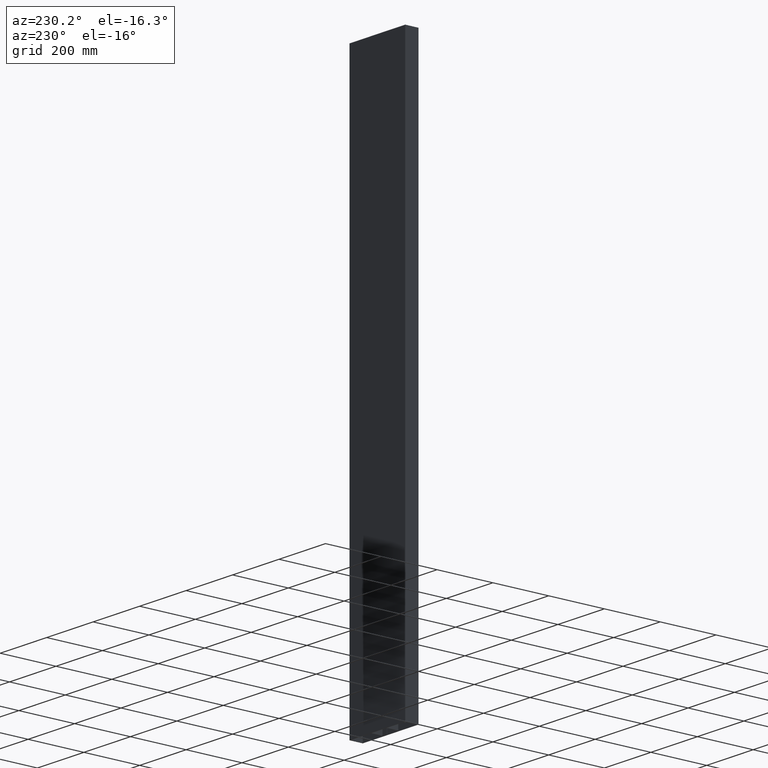
[diagram: clean part render]
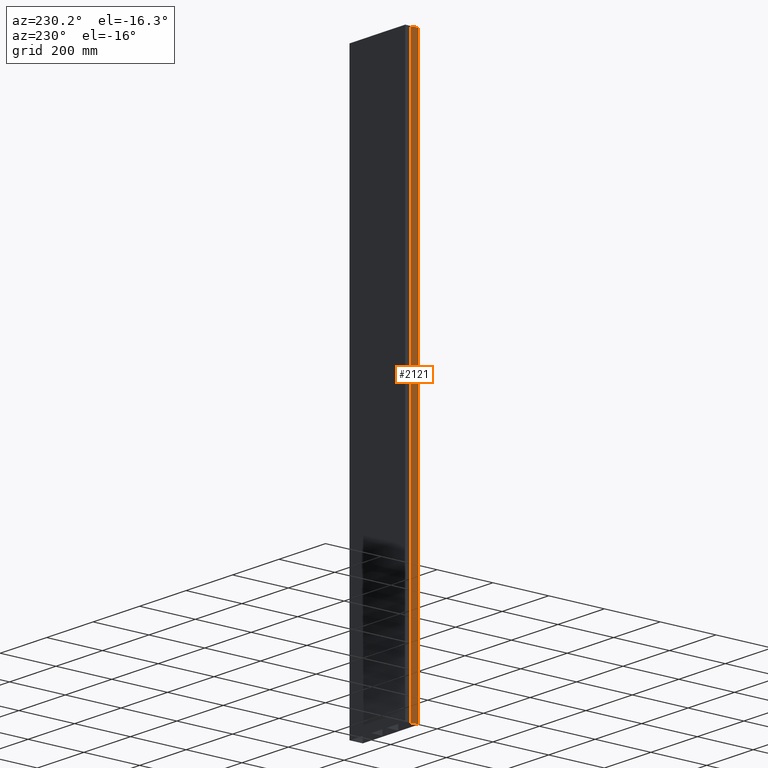
[diagram: same view with one face highlighted and labeled with its STEP entity id]
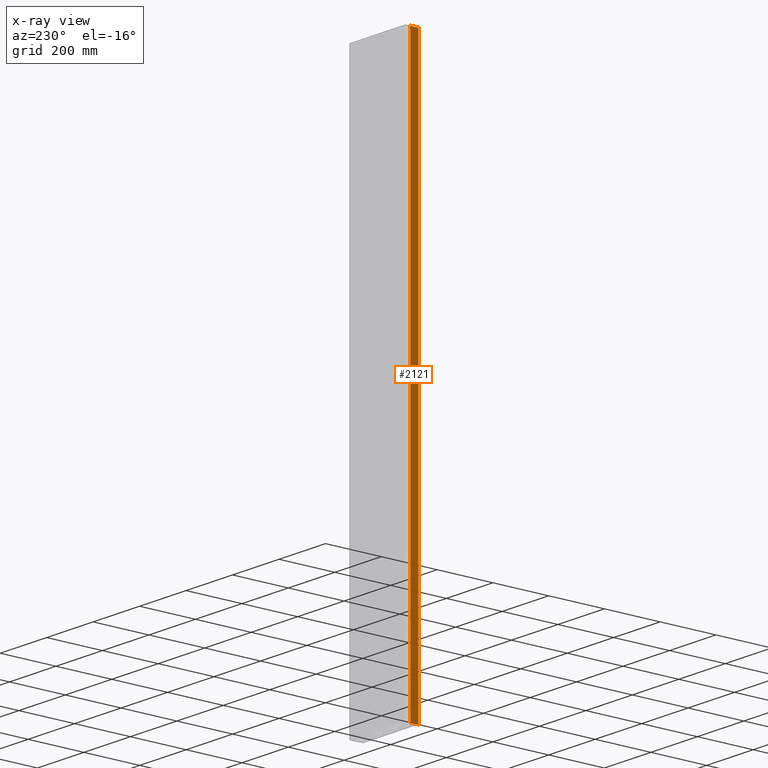
[diagram: x-ray of the same camera — body ghosted, the highlighted face saturated]
A machine part, auxiliary view. The second image highlights one B-rep face of the part: STEP entity #2121.
The next image is the same camera in x-ray: the body ghosted, the highlighted face saturated — about 0% of this face is hidden behind the body in this view.
In plain terms, the highlighted planar face has unit normal (-1, 0, 0).
Its self-contained STEP definition (entity closure, byte-faithful):
#1483=DIRECTION('',(0.E0,-1.E0,0.E0));
#1484=VECTOR('',#1483,2.99028E1);
#1485=CARTESIAN_POINT('',(-1.2E2,2.99028E1,0.E0));
#1486=LINE('',#1485,#1484);
#1547=DIRECTION('',(0.E0,0.E0,-1.E0));
#1548=VECTOR('',#1547,2.E3);
#1549=CARTESIAN_POINT('',(-1.2E2,2.99028E1,0.E0));
#1550=LINE('',#1549,#1548);
#1551=DIRECTION('',(0.E0,0.E0,-1.E0));
#1552=VECTOR('',#1551,2.E3);
#1553=CARTESIAN_POINT('',(-1.2E2,0.E0,0.E0));
#1554=LINE('',#1553,#1552);
#1659=DIRECTION('',(0.E0,-1.E0,0.E0));
#1660=VECTOR('',#1659,2.99028E1);
#1661=CARTESIAN_POINT('',(-1.2E2,2.99028E1,-2.E3));
#1662=LINE('',#1661,#1660);
#1819=CARTESIAN_POINT('',(-1.2E2,0.E0,0.E0));
#1821=VERTEX_POINT('',#1819);
#1843=CARTESIAN_POINT('',(-1.2E2,0.E0,-2.E3));
#1845=VERTEX_POINT('',#1843);
#1881=CARTESIAN_POINT('',(-1.2E2,2.99028E1,0.E0));
#1882=VERTEX_POINT('',#1881);
#1897=CARTESIAN_POINT('',(-1.2E2,2.99028E1,-2.E3));
#1898=VERTEX_POINT('',#1897);
#2108=CARTESIAN_POINT('',(-1.2E2,2.99028E1,0.E0));
#2109=DIRECTION('',(-1.E0,0.E0,0.E0));
#2110=DIRECTION('',(0.E0,-1.E0,0.E0));
#2111=AXIS2_PLACEMENT_3D('',#2108,#2109,#2110);
#2112=PLANE('',#2111);
#2113=ORIENTED_EDGE('',*,*,#1976,.T.);
#2115=ORIENTED_EDGE('',*,*,#2114,.T.);
#2117=ORIENTED_EDGE('',*,*,#2116,.F.);
#2118=ORIENTED_EDGE('',*,*,#2100,.F.);
#2119=EDGE_LOOP('',(#2113,#2115,#2117,#2118));
#2120=FACE_OUTER_BOUND('',#2119,.F.);
#1976=EDGE_CURVE('',#1882,#1821,#1486,.T.);
#2100=EDGE_CURVE('',#1882,#1898,#1550,.T.);
#2114=EDGE_CURVE('',#1821,#1845,#1554,.T.);
#2116=EDGE_CURVE('',#1898,#1845,#1662,.T.);
#2121=ADVANCED_FACE('',(#2120),#2112,.T.);